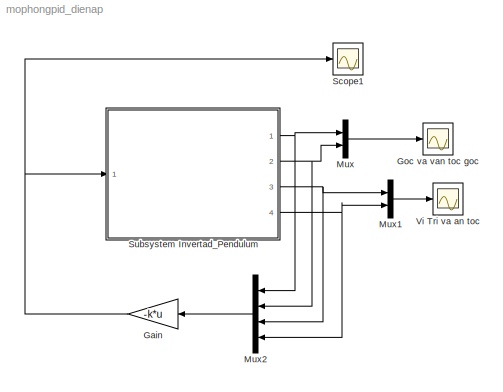
MODEL mophongpid_dienap
KIND model
BLOCK [Gain] Gain
  Gain = -k*u
  OutDataTypeStr = Inherit: Inherit via internal rule
  ParamDataTypeStr = Inherit: Inherit via internal rule
  SID = 57
  SaturateOnIntegerOverflow = off
BLOCK [Scope] Goc va van toc goc
  NumInputPorts = 1
  Ports = [1]
  SID = 42
  ScopeSpecificationString = Simulink.scopes.TimeScopeBlockCfg('CurrentConfiguration', extmgr.ConfigurationSet(extmgr.Configuration('Core','General UI',true),extmgr.Configuration('Core','Source UI',true),extmgr.Configuration('Sources','WiredSimulink',true),extmgr.Configuration('Visuals','Time Domain',true),extmgr.Configuration('Tools','Plot Navigation',true),extmgr.Configuration('Tools','Measurements',true)),'Version','2017b'...<+1ch>
BLOCK [Mux] Mux
  DisplayOption = bar
  Inputs = 2
  Ports = [2, 1]
  SID = 49
BLOCK [Mux] Mux1
  DisplayOption = bar
  Inputs = 2
  Ports = [2, 1]
  SID = 50
BLOCK [Mux] Mux2
  DisplayOption = bar
  Ports = [4, 1]
  SID = 51
BLOCK [Scope] Scope1
  NumInputPorts = 1
  Ports = [1]
  SID = 43
  ScopeSpecificationString = Simulink.scopes.TimeScopeBlockCfg('CurrentConfiguration', extmgr.ConfigurationSet(extmgr.Configuration('Core','General UI',true),extmgr.Configuration('Core','Source UI',true),extmgr.Configuration('Sources','WiredSimulink',true,'DataLoggingVariableName','ScopeData1'),extmgr.Configuration('Visuals','Time Domain',true),extmgr.Configuration('Tools','Plot Navigation',true),extmgr.Configuration('Tools',...<+40ch>
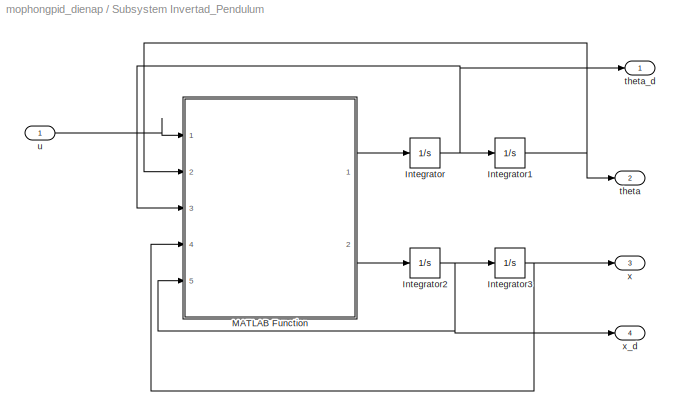
BLOCK [SubSystem] Subsystem Invertad_Pendulum
  Ports = [1, 4]
  RequestExecContextInheritance = off
  SID = 35
  Variant = off
BLOCK [Integrator] Subsystem Invertad_Pendulum/Integrator
  InitialCondition = thetadot_init
  Ports = [1, 1]
  SID = 2
BLOCK [Integrator] Subsystem Invertad_Pendulum/Integrator1
  InitialCondition = theta_init
  Ports = [1, 1]
  SID = 3
BLOCK [Integrator] Subsystem Invertad_Pendulum/Integrator2
  InitialCondition = xdot_init
  Ports = [1, 1]
  SID = 5
BLOCK [Integrator] Subsystem Invertad_Pendulum/Integrator3
  InitialCondition = x_init
  Ports = [1, 1]
  SID = 6
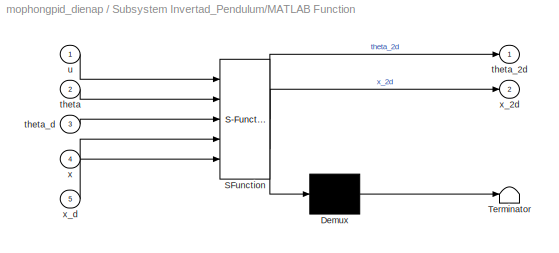
BLOCK [SubSystem] Subsystem Invertad_Pendulum/MATLAB Function
  ErrorFcn = Stateflow.Translate.translate
  PermitHierarchicalResolution = ExplicitOnly
  Ports = [5, 2]
  RequestExecContextInheritance = off
  SFBlockType = MATLAB Function
  SID = 1
  TreatAsAtomicUnit = on
  Variant = off
BLOCK [Demux] Subsystem Invertad_Pendulum/MATLAB Function/ Demux 
  Outputs = 1
  Ports = [1, 1]
  SID = 1::20
BLOCK [S-Function] Subsystem Invertad_Pendulum/MATLAB Function/ SFunction 
  EnableBusSupport = on
  FunctionName = sf_sfun
  PortCounts = [5 3]
  Ports = [5, 3]
  SFcnIsStateOwnerBlock = off
  SFunctionDeploymentMode = off
  SID = 1::19
  Tag = Stateflow S-Function mophongpid_dienap 2
BLOCK [Terminator] Subsystem Invertad_Pendulum/MATLAB Function/ Terminator 
  SID = 1::21
BLOCK [Inport] Subsystem Invertad_Pendulum/MATLAB Function/theta
  IconDisplay = Port number
  Port = 2
  SID = 1::23
BLOCK [Outport] Subsystem Invertad_Pendulum/MATLAB Function/theta_2d
  IconDisplay = Port number
  SID = 1::5
BLOCK [Inport] Subsystem Invertad_Pendulum/MATLAB Function/theta_d
  IconDisplay = Port number
  Port = 3
  SID = 1::22
BLOCK [Inport] Subsystem Invertad_Pendulum/MATLAB Function/u
  IconDisplay = Port number
  SID = 1::1
BLOCK [Inport] Subsystem Invertad_Pendulum/MATLAB Function/x
  IconDisplay = Port number
  Port = 4
  SID = 1::27
BLOCK [Outport] Subsystem Invertad_Pendulum/MATLAB Function/x_2d
  IconDisplay = Port number
  Port = 2
  SID = 1::26
BLOCK [Inport] Subsystem Invertad_Pendulum/MATLAB Function/x_d
  IconDisplay = Port number
  Port = 5
  SID = 1::28
BLOCK [Outport] Subsystem Invertad_Pendulum/theta
  IconDisplay = Port number
  Port = 2
  SID = 38
BLOCK [Outport] Subsystem Invertad_Pendulum/theta_d
  IconDisplay = Port number
  SID = 37
BLOCK [Inport] Subsystem Invertad_Pendulum/u
  IconDisplay = Port number
  SID = 36
BLOCK [Outport] Subsystem Invertad_Pendulum/x
  IconDisplay = Port number
  Port = 3
  SID = 39
BLOCK [Outport] Subsystem Invertad_Pendulum/x_d
  IconDisplay = Port number
  Port = 4
  SID = 40
BLOCK [Scope] Vi Tri va an toc
  NumInputPorts = 1
  Ports = [1]
  SID = 44
  ScopeSpecificationString = Simulink.scopes.TimeScopeBlockCfg('CurrentConfiguration', extmgr.ConfigurationSet(extmgr.Configuration('Core','General UI',true),extmgr.Configuration('Core','Source UI',true),extmgr.Configuration('Sources','WiredSimulink',true,'DataLoggingVariableName','ScopeData2'),extmgr.Configuration('Visuals','Time Domain',true,'SerializedDisplays',{struct('MinYLimReal','-1.00000','MaxYLimReal','1.00000','YLab...<+1420ch>
NET Gain:1 -> Scope1:1, Subsystem Invertad_Pendulum:1
LINE Mux1:1 -> Vi Tri va an toc:1
LINE Mux2:1 -> Gain:1
LINE Mux:1 -> Goc va van toc goc:1
NET Subsystem Invertad_Pendulum/Integrator1:1 -> Subsystem Invertad_Pendulum/MATLAB Function:2, Subsystem Invertad_Pendulum/theta:1
NET Subsystem Invertad_Pendulum/Integrator2:1 -> Subsystem Invertad_Pendulum/Integrator3:1, Subsystem Invertad_Pendulum/MATLAB Function:5, Subsystem Invertad_Pendulum/x_d:1
NET Subsystem Invertad_Pendulum/Integrator3:1 -> Subsystem Invertad_Pendulum/MATLAB Function:4, Subsystem Invertad_Pendulum/x:1
NET Subsystem Invertad_Pendulum/Integrator:1 -> Subsystem Invertad_Pendulum/Integrator1:1, Subsystem Invertad_Pendulum/MATLAB Function:3, Subsystem Invertad_Pendulum/theta_d:1
LINE Subsystem Invertad_Pendulum/MATLAB Function/ Demux :1 -> Subsystem Invertad_Pendulum/MATLAB Function/ Terminator :1
LINE Subsystem Invertad_Pendulum/MATLAB Function/ SFunction :1 -> Subsystem Invertad_Pendulum/MATLAB Function/ Demux :1
LINE Subsystem Invertad_Pendulum/MATLAB Function/ SFunction :2 -> Subsystem Invertad_Pendulum/MATLAB Function/theta_2d:1
LINE Subsystem Invertad_Pendulum/MATLAB Function/ SFunction :3 -> Subsystem Invertad_Pendulum/MATLAB Function/x_2d:1
LINE Subsystem Invertad_Pendulum/MATLAB Function/theta:1 -> Subsystem Invertad_Pendulum/MATLAB Function/ SFunction :2
LINE Subsystem Invertad_Pendulum/MATLAB Function/theta_d:1 -> Subsystem Invertad_Pendulum/MATLAB Function/ SFunction :3
LINE Subsystem Invertad_Pendulum/MATLAB Function/u:1 -> Subsystem Invertad_Pendulum/MATLAB Function/ SFunction :1
LINE Subsystem Invertad_Pendulum/MATLAB Function/x:1 -> Subsystem Invertad_Pendulum/MATLAB Function/ SFunction :4
LINE Subsystem Invertad_Pendulum/MATLAB Function/x_d:1 -> Subsystem Invertad_Pendulum/MATLAB Function/ SFunction :5
LINE Subsystem Invertad_Pendulum/MATLAB Function:1 -> Subsystem Invertad_Pendulum/Integrator:1
LINE Subsystem Invertad_Pendulum/MATLAB Function:2 -> Subsystem Invertad_Pendulum/Integrator2:1
LINE Subsystem Invertad_Pendulum/u:1 -> Subsystem Invertad_Pendulum/MATLAB Function:1
NET Subsystem Invertad_Pendulum:1 -> Mux2:1, Mux:1
NET Subsystem Invertad_Pendulum:2 -> Mux2:2, Mux:2
NET Subsystem Invertad_Pendulum:3 -> Mux1:1, Mux2:3
NET Subsystem Invertad_Pendulum:4 -> Mux1:2, Mux2:4
note: NET lines group one-source signal fan-out (src -> all destinations, sorted); 1:1 wires keep LINE
CHART Subsystem Invertad_Pendulum/MATLAB Function states=1 transitions=1
  STATE_LABEL 'eML_blk_kernel()'
